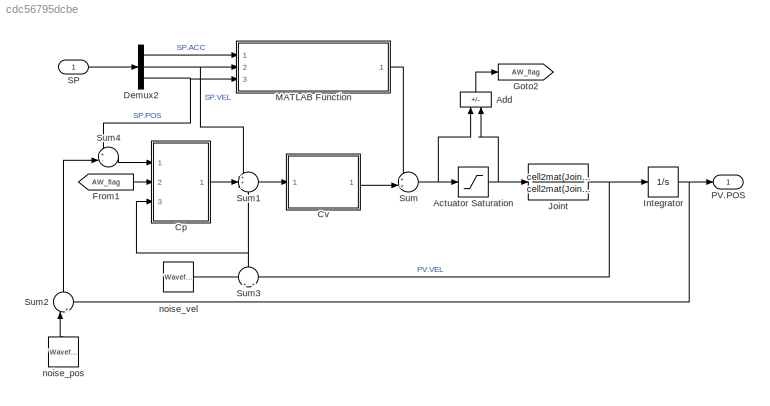
MODEL slx_cdc56795dcbe
KIND model
CONFIG AbsTol = auto
CONFIG EnableMultiTasking = off
CONFIG FixedStep = auto
CONFIG MaxStep = auto
CONFIG MinStep = auto
CONFIG RelTol = 1e-3
CONFIG SampleTimeConstraint = Unconstrained
CONFIG SolverName = VariableStepAuto
CONFIG StartTime = 0.0
CONFIG StopTime = 10.0
BLOCK [Saturate] Actuator Saturation
  LowerLimit = -150
  UpperLimit = 150
BLOCK [Sum] Add
  IconShape = rectangular
  Inputs = +-
  NameLocation = left
  Ports = [2, 1]
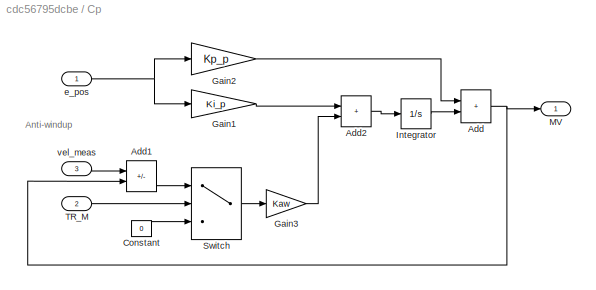
BLOCK [SubSystem] Cp
  Ports = [3, 1]
  RequestExecContextInheritance = off
BLOCK [Sum] Cp/Add
  IconShape = rectangular
  Ports = [2, 1]
BLOCK [Sum] Cp/Add1
  IconShape = rectangular
  Inputs = +-
  NameLocation = top
  Ports = [2, 1]
BLOCK [Sum] Cp/Add2
  IconShape = rectangular
  Ports = [2, 1]
BLOCK [Constant] Cp/Constant
  NameLocation = top
  Value = 0
BLOCK [Gain] Cp/Gain1
  Gain = Ki_p
BLOCK [Gain] Cp/Gain2
  Gain = Kp_p
BLOCK [Gain] Cp/Gain3
  Gain = Kaw
BLOCK [Integrator] Cp/Integrator
  Ports = [1, 1]
BLOCK [Outport] Cp/MV
BLOCK [Switch] Cp/Switch
  Criteria = u2 ~= 0
  InputSameDT = off
  NameLocation = top
  SaturateOnIntegerOverflow = off
BLOCK [Inport] Cp/TR_M
  Port = 2
BLOCK [Inport] Cp/e_pos
  NameLocation = top
BLOCK [Inport] Cp/vel_meas
  NameLocation = top
  Port = 3
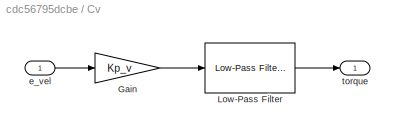
BLOCK [SubSystem] Cv
  Ports = [1, 1]
  RequestExecContextInheritance = off
BLOCK [Gain] Cv/Gain
  Gain = Kp_v
BLOCK [Reference] Cv/Low-Pass Filter  REF=eeGeneralControl/Low-Pass Filter
(Discrete or Continuous)
  Ports = [1, 1]
  SourceBlock = eeGeneralControl/Low-Pass Filter\n(Discrete or Continuous)
  SourceProductBaseCode = PS
  SourceType = Low-Pass Filter (Discrete or Continuous)
BLOCK [Inport] Cv/e_vel
BLOCK [Outport] Cv/torque
BLOCK [Demux] Demux2
  Outputs = 3
  Ports = [1, 3]
BLOCK [From] From1
  GotoTag = AW_flag
  TagVisibility = global
BLOCK [Goto] Goto2
  GotoTag = AW_flag
  TagVisibility = global
BLOCK [Integrator] Integrator
  Ports = [1, 1]
BLOCK [TransferFcn] Joint
  Denominator = cell2mat(Joint.Denominator)
  Numerator = cell2mat(Joint.Numerator)
  Tag = Giunto
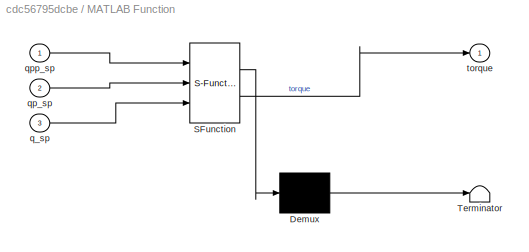
BLOCK [SubSystem] MATLAB Function
  ErrorFcn = Stateflow.Translate.translate
  PermitHierarchicalResolution = ExplicitOnly
  Ports = [3, 1]
  RequestExecContextInheritance = off
  SFBlockType = MATLAB Function
  TreatAsAtomicUnit = on
BLOCK [Demux] MATLAB Function/ Demux 
  Outputs = 1
  Ports = [1, 1]
BLOCK [S-Function] MATLAB Function/ SFunction 
  EnableBusSupport = on
  FunctionName = sf_sfun
  PortCounts = [3 2]
  Ports = [3, 2]
  SFcnIsStateOwnerBlock = off
  SFunctionDeploymentMode = off
  Tag = Stateflow S-Function 2
BLOCK [Terminator] MATLAB Function/ Terminator 
BLOCK [Inport] MATLAB Function/q_sp
  Port = 3
BLOCK [Inport] MATLAB Function/qp_sp
  Port = 2
BLOCK [Inport] MATLAB Function/qpp_sp
BLOCK [Outport] MATLAB Function/torque
BLOCK [Outport] PV.POS
  NameLocation = top
BLOCK [Inport] SP
  NameLocation = top
BLOCK [Sum] Sum
  Inputs = ++|
  Ports = [2, 1]
BLOCK [Sum] Sum1
  Inputs = ++-
  Ports = [3, 1]
BLOCK [Sum] Sum2
  Inputs = |++
  NameLocation = right
  Ports = [2, 1]
BLOCK [Sum] Sum3
  Inputs = +|+
  NameLocation = right
  Ports = [2, 1]
BLOCK [Sum] Sum4
  Inputs = +-|
  Ports = [2, 1]
BLOCK [Reference] noise_pos  REF=simulink/Sources/Waveform
Generator
  NameLocation = right
  Ports = [0, 1]
  SourceBlock = simulink/Sources/Waveform\nGenerator
  SourceProductBaseCode = SL
  SourceType = WaveformGenerator
BLOCK [Reference] noise_vel  REF=simulink/Sources/Waveform
Generator
  NameLocation = left
  Ports = [0, 1]
  SourceBlock = simulink/Sources/Waveform\nGenerator
  SourceProductBaseCode = SL
  SourceType = WaveformGenerator
ANNOTATION Cp: Anti-windup
NET Actuator Saturation:1 -> Add:2, Joint:1
LINE Add:1 -> Goto2:1
LINE Cp/Add1:1 -> Cp/Switch:1
LINE Cp/Add2:1 -> Cp/Integrator:1
NET Cp/Add:1 -> Cp/Add1:2, Cp/MV:1
LINE Cp/Constant:1 -> Cp/Switch:3
LINE Cp/Gain1:1 -> Cp/Add2:1
LINE Cp/Gain2:1 -> Cp/Add:1
LINE Cp/Gain3:1 -> Cp/Add2:2
LINE Cp/Integrator:1 -> Cp/Add:2
LINE Cp/Switch:1 -> Cp/Gain3:1
LINE Cp/TR_M:1 -> Cp/Switch:2
NET Cp/e_pos:1 -> Cp/Gain1:1, Cp/Gain2:1
LINE Cp/vel_meas:1 -> Cp/Add1:1
LINE Cp:1 -> Sum1:2
LINE Cv/Gain:1 -> Cv/Low-Pass Filter:1
LINE Cv/Low-Pass Filter:1 -> Cv/torque:1
LINE Cv/e_vel:1 -> Cv/Gain:1
LINE Cv:1 -> Sum:2
LINE Demux2:1 -> MATLAB Function:1
NET Demux2:2 -> MATLAB Function:2, Sum1:1
NET Demux2:3 -> MATLAB Function:3, Sum4:1
LINE From1:1 -> Cp:2
NET Integrator:1 -> PV.POS:1, Sum2:2
NET Joint:1 -> Integrator:1, Sum3:2
LINE MATLAB Function:1 -> Sum:1
LINE SP:1 -> Demux2:1
LINE Sum1:1 -> Cv:1
LINE Sum2:1 -> Sum4:2
NET Sum3:1 -> Cp:3, Sum1:3
LINE Sum4:1 -> Cp:1
NET Sum:1 -> Actuator Saturation:1, Add:1
LINE noise_pos:1 -> Sum2:1
LINE noise_vel:1 -> Sum3:1
note: NET lines group one-source signal fan-out (src -> all destinations, sorted); 1:1 wires keep LINE
CHART MATLAB Function states=1 transitions=1
  STATE_LABEL 'eML_blk_kernel()'
  STATE_LABEL 'SCRIPT:\nfunction torque = InverseDynamics(qpp_sp,qp_sp,q_sp)\n\nFFW = SP;\n'
CHART  states=0 transitions=0
